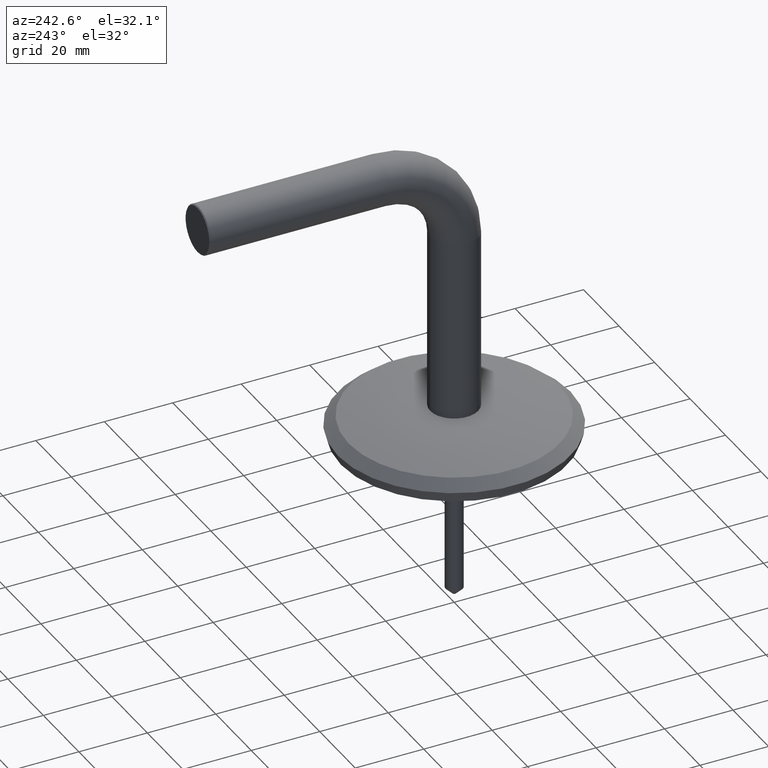
[diagram: clean part render]
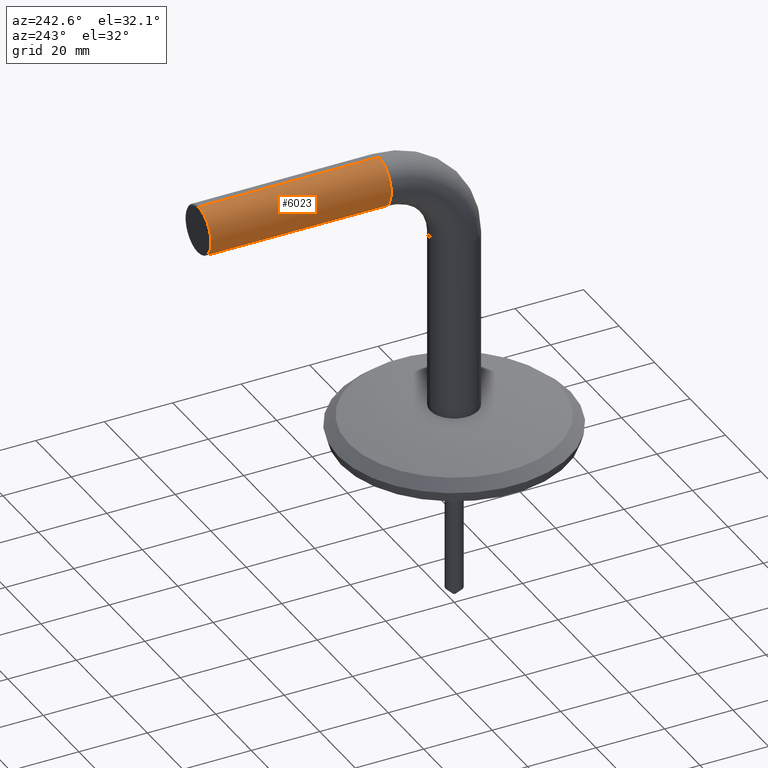
[diagram: same view with one face highlighted and labeled with its STEP entity id]
A machine part, auxiliary view. The second image highlights one B-rep face of the part: STEP entity #6023.
In plain terms, the highlighted cylindrical surface (edge-blend (fillet) strip) has radius 7 mm, axis along (0, 1, 0).
Its self-contained STEP definition (entity closure, byte-faithful):
#437 = ORIENTED_EDGE ( 'NONE', *, *, #11286, .F. ) ;
#685 = CARTESIAN_POINT ( 'NONE',  ( 8.572527594031467273E-16, 21.99999999999999289, 68.00000000000000000 ) ) ;
#1569 = AXIS2_PLACEMENT_3D ( 'NONE', #2483, #10054, #4722 ) ;
#2459 = VERTEX_POINT ( 'NONE', #10264 ) ;
#2483 = CARTESIAN_POINT ( 'NONE',  ( 0.000000000000000000, 21.99999999999999289, 75.00000000000001421 ) ) ;
#2741 = EDGE_CURVE ( 'NONE', #12410, #2875, #3374, .T. ) ;
#2748 = ORIENTED_EDGE ( 'NONE', *, *, #4037, .T. ) ;
#2875 = VERTEX_POINT ( 'NONE', #4831 ) ;
#3096 = DIRECTION ( 'NONE',  ( 1.000000000000000000, 0.000000000000000000, 0.000000000000000000 ) ) ;
#3282 = EDGE_LOOP ( 'NONE', ( #437, #12434, #13378, #2748 ) ) ;
#3374 = LINE ( 'NONE', #5728, #7887 ) ;
#3694 = DIRECTION ( 'NONE',  ( 0.000000000000000000, -1.000000000000000000, 0.000000000000000000 ) ) ;
#4037 = EDGE_CURVE ( 'NONE', #2875, #2459, #9363, .T. ) ;
#4167 = FACE_OUTER_BOUND ( 'NONE', #3282, .T. ) ;
#4721 = DIRECTION ( 'NONE',  ( 0.000000000000000000, 1.000000000000000000, 0.000000000000000000 ) ) ;
#4722 = DIRECTION ( 'NONE',  ( 0.000000000000000000, 0.000000000000000000, 1.000000000000000000 ) ) ;
#4756 = DIRECTION ( 'NONE',  ( 0.000000000000000000, 0.000000000000000000, 1.000000000000000000 ) ) ;
#4831 = CARTESIAN_POINT ( 'NONE',  ( 0.000000000000000000, 74.69999999999996021, 82.00000000000001421 ) ) ;
#4952 = AXIS2_PLACEMENT_3D ( 'NONE', #6375, #10684, #3096 ) ;
#5348 = AXIS2_PLACEMENT_3D ( 'NONE', #10047, #3694, #4756 ) ;
#5728 = CARTESIAN_POINT ( 'NONE',  ( 0.000000000000000000, 21.99999999999999289, 82.00000000000001421 ) ) ;
#6023 = ADVANCED_FACE ( 'NONE', ( #4167 ), #13628, .T. ) ;
#6375 = CARTESIAN_POINT ( 'NONE',  ( 0.000000000000000000, 21.99999999999999289, 75.00000000000001421 ) ) ;
#6608 = LINE ( 'NONE', #11079, #12103 ) ;
#7887 = VECTOR ( 'NONE', #4721, 1000.000000000000000 ) ;
#9363 = CIRCLE ( 'NONE', #5348, 7.000000000000006217 ) ;
#9674 = VERTEX_POINT ( 'NONE', #685 ) ;
#10047 = CARTESIAN_POINT ( 'NONE',  ( 0.000000000000000000, 74.69999999999996021, 75.00000000000001421 ) ) ;
#10054 = DIRECTION ( 'NONE',  ( 0.000000000000000000, 1.000000000000000000, 0.000000000000000000 ) ) ;
#10264 = CARTESIAN_POINT ( 'NONE',  ( 8.572527594031467273E-16, 74.69999999999996021, 68.00000000000000000 ) ) ;
#10367 = CARTESIAN_POINT ( 'NONE',  ( 0.000000000000000000, 21.99999999999999289, 82.00000000000001421 ) ) ;
#10684 = DIRECTION ( 'NONE',  ( 0.000000000000000000, 1.000000000000000000, -1.311299159921008727E-16 ) ) ;
#10888 = DIRECTION ( 'NONE',  ( 0.000000000000000000, 1.000000000000000000, 0.000000000000000000 ) ) ;
#11079 = CARTESIAN_POINT ( 'NONE',  ( 8.572527594031474176E-16, 21.99999999999999289, 68.00000000000000000 ) ) ;
#11286 = EDGE_CURVE ( 'NONE', #9674, #2459, #6608, .T. ) ;
#11381 = EDGE_CURVE ( 'NONE', #9674, #12410, #11584, .T. ) ;
#11584 = CIRCLE ( 'NONE', #4952, 7.000000000000000888 ) ;
#12103 = VECTOR ( 'NONE', #10888, 1000.000000000000000 ) ;
#12410 = VERTEX_POINT ( 'NONE', #10367 ) ;
#12434 = ORIENTED_EDGE ( 'NONE', *, *, #11381, .T. ) ;
#13378 = ORIENTED_EDGE ( 'NONE', *, *, #2741, .T. ) ;
#13628 = CYLINDRICAL_SURFACE ( 'NONE', #1569, 7.000000000000006217 ) ;